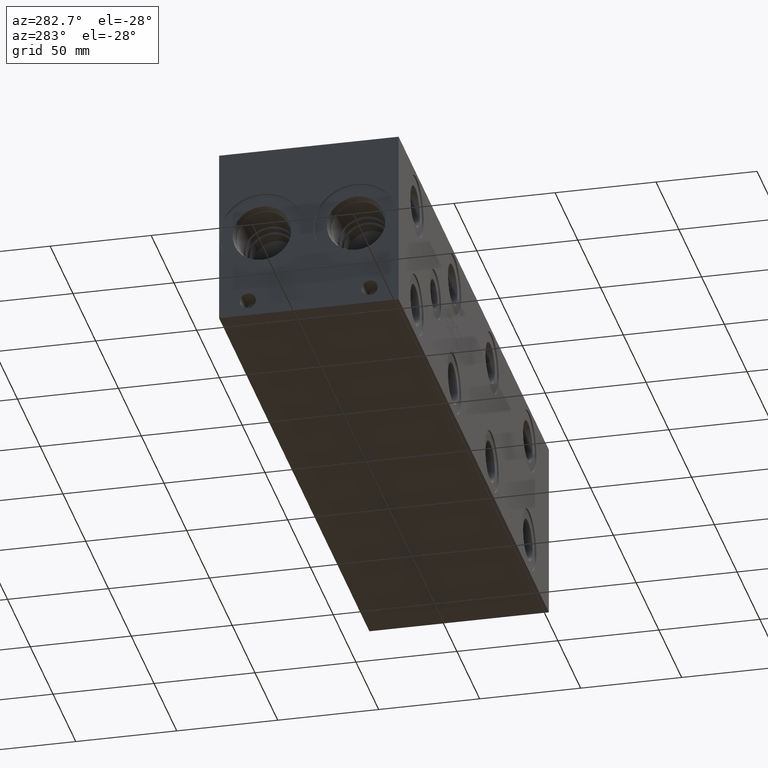
[diagram: clean part render]
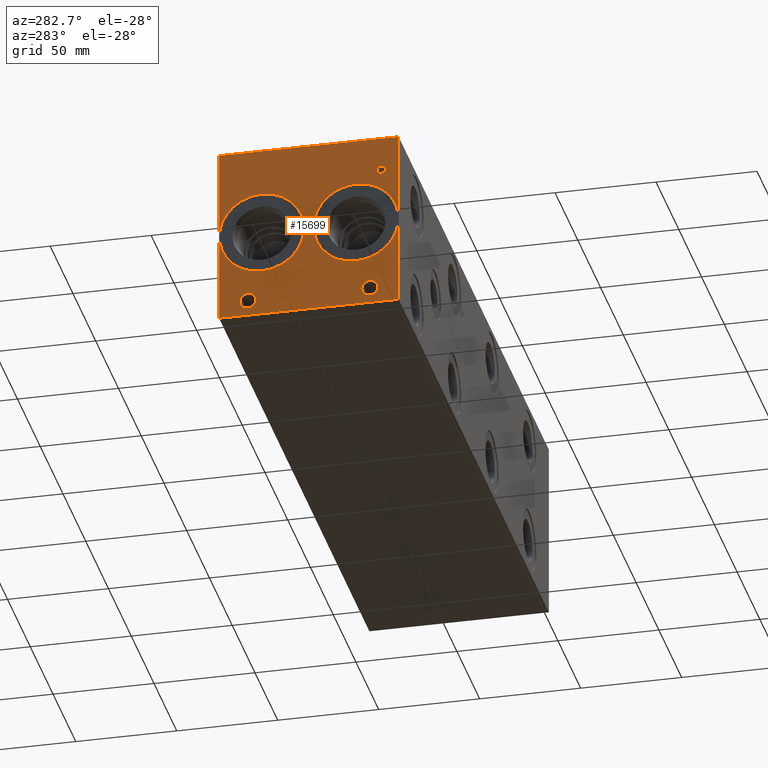
[diagram: same view with one face highlighted and labeled with its STEP entity id]
A machine part, auxiliary view. The second image highlights one B-rep face of the part: STEP entity #15699.
In plain terms, the highlighted planar face has unit normal (-1, 0, 0).
Its self-contained STEP definition (entity closure, byte-faithful):
#240=CIRCLE('',#16564,3.9624);
#241=CIRCLE('',#16565,3.9624);
#242=CIRCLE('',#16566,3.9624);
#243=CIRCLE('',#16567,3.9624);
#244=CIRCLE('',#16568,21.0185);
#245=CIRCLE('',#16569,21.0185);
#246=CIRCLE('',#16570,21.0185);
#247=CIRCLE('',#16571,21.0185);
#719=FACE_BOUND('',#2381,.T.);
#720=FACE_BOUND('',#2382,.T.);
#721=FACE_BOUND('',#2383,.T.);
#722=FACE_BOUND('',#2384,.T.);
#723=FACE_BOUND('',#2385,.T.);
#724=FACE_BOUND('',#2386,.T.);
#891=B_SPLINE_CURVE_WITH_KNOTS('',2,(#21784,#21785,#21786,#21787),
 .UNSPECIFIED.,.F.,.F.,(3,1,3),(0.,1.,2.),.UNSPECIFIED.);
#893=B_SPLINE_CURVE_WITH_KNOTS('',2,(#21805,#21806,#21807,#21808),
 .UNSPECIFIED.,.F.,.F.,(3,1,3),(0.,1.,2.),.UNSPECIFIED.);
#895=B_SPLINE_CURVE_WITH_KNOTS('',2,(#21854,#21855,#21856,#21857),
 .UNSPECIFIED.,.F.,.F.,(3,1,3),(0.,1.,2.),.UNSPECIFIED.);
#897=B_SPLINE_CURVE_WITH_KNOTS('',2,(#21872,#21873,#21874,#21875),
 .UNSPECIFIED.,.F.,.F.,(3,1,3),(0.,1.,2.),.UNSPECIFIED.);
#1514=FACE_OUTER_BOUND('',#2380,.T.);
#2380=EDGE_LOOP('',(#10324,#10325,#10326,#10327));
#2381=EDGE_LOOP('',(#10328,#10329,#10330,#10331,#10332,#10333,#10334,#10335));
#2382=EDGE_LOOP('',(#10336,#10337));
#2383=EDGE_LOOP('',(#10338,#10339));
#2384=EDGE_LOOP('',(#10340,#10341));
#2385=EDGE_LOOP('',(#10342,#10343));
#2386=EDGE_LOOP('',(#10344,#10345,#10346,#10347,#10348,#10349,#10350,#10351,
#10352));
#3393=LINE('',#21634,#4811);
#3397=LINE('',#21642,#4815);
#3400=LINE('',#21648,#4818);
#3403=LINE('',#21654,#4821);
#3406=LINE('',#21660,#4824);
#3409=LINE('',#21666,#4827);
#3412=LINE('',#21672,#4830);
#3415=LINE('',#21677,#4833);
#3433=LINE('',#21817,#4851);
#3436=LINE('',#21823,#4854);
#3439=LINE('',#21829,#4857);
#3442=LINE('',#21835,#4860);
#3445=LINE('',#21841,#4863);
#3449=LINE('',#21884,#4867);
#3450=LINE('',#21886,#4868);
#3451=LINE('',#21888,#4869);
#3452=LINE('',#21889,#4870);
#4811=VECTOR('',#17775,10.);
#4815=VECTOR('',#17781,10.);
#4818=VECTOR('',#17786,10.);
#4821=VECTOR('',#17791,10.);
#4824=VECTOR('',#17796,10.);
#4827=VECTOR('',#17801,10.);
#4830=VECTOR('',#17806,10.);
#4833=VECTOR('',#17811,10.);
#4851=VECTOR('',#17839,10.);
#4854=VECTOR('',#17844,10.);
#4857=VECTOR('',#17849,10.);
#4860=VECTOR('',#17854,10.);
#4863=VECTOR('',#17859,10.);
#4867=VECTOR('',#17867,10.);
#4868=VECTOR('',#17868,10.);
#4869=VECTOR('',#17869,10.);
#4870=VECTOR('',#17870,10.);
#6229=VERTEX_POINT('',#21632);
#6230=VERTEX_POINT('',#21633);
#6233=VERTEX_POINT('',#21641);
#6235=VERTEX_POINT('',#21647);
#6237=VERTEX_POINT('',#21653);
#6239=VERTEX_POINT('',#21659);
#6241=VERTEX_POINT('',#21665);
#6243=VERTEX_POINT('',#21671);
#6259=VERTEX_POINT('',#21782);
#6260=VERTEX_POINT('',#21783);
#6263=VERTEX_POINT('',#21804);
#6265=VERTEX_POINT('',#21816);
#6267=VERTEX_POINT('',#21822);
#6269=VERTEX_POINT('',#21828);
#6271=VERTEX_POINT('',#21834);
#6273=VERTEX_POINT('',#21840);
#6275=VERTEX_POINT('',#21853);
#6277=VERTEX_POINT('',#21882);
#6278=VERTEX_POINT('',#21883);
#6279=VERTEX_POINT('',#21885);
#6280=VERTEX_POINT('',#21887);
#6281=VERTEX_POINT('',#21890);
#6282=VERTEX_POINT('',#21891);
#6283=VERTEX_POINT('',#21894);
#6284=VERTEX_POINT('',#21895);
#6285=VERTEX_POINT('',#21898);
#6286=VERTEX_POINT('',#21899);
#6287=VERTEX_POINT('',#21902);
#6288=VERTEX_POINT('',#21903);
#7846=EDGE_CURVE('',#6229,#6230,#3393,.T.);
#7850=EDGE_CURVE('',#6233,#6229,#3397,.T.);
#7853=EDGE_CURVE('',#6235,#6233,#3400,.T.);
#7856=EDGE_CURVE('',#6237,#6235,#3403,.T.);
#7859=EDGE_CURVE('',#6239,#6237,#3406,.T.);
#7862=EDGE_CURVE('',#6241,#6239,#3409,.T.);
#7865=EDGE_CURVE('',#6243,#6241,#3412,.T.);
#7868=EDGE_CURVE('',#6230,#6243,#3415,.T.);
#7891=EDGE_CURVE('',#6259,#6260,#891,.T.);
#7895=EDGE_CURVE('',#6263,#6259,#893,.T.);
#7898=EDGE_CURVE('',#6265,#6263,#3433,.T.);
#7901=EDGE_CURVE('',#6267,#6265,#3436,.T.);
#7904=EDGE_CURVE('',#6269,#6267,#3439,.T.);
#7907=EDGE_CURVE('',#6271,#6269,#3442,.T.);
#7910=EDGE_CURVE('',#6273,#6271,#3445,.T.);
#7913=EDGE_CURVE('',#6275,#6273,#895,.T.);
#7916=EDGE_CURVE('',#6260,#6275,#897,.T.);
#7918=EDGE_CURVE('',#6277,#6278,#3449,.T.);
#7919=EDGE_CURVE('',#6278,#6279,#3450,.T.);
#7920=EDGE_CURVE('',#6280,#6279,#3451,.T.);
#7921=EDGE_CURVE('',#6277,#6280,#3452,.T.);
#7922=EDGE_CURVE('',#6281,#6282,#240,.T.);
#7923=EDGE_CURVE('',#6282,#6281,#241,.T.);
#7924=EDGE_CURVE('',#6283,#6284,#242,.T.);
#7925=EDGE_CURVE('',#6284,#6283,#243,.T.);
#7926=EDGE_CURVE('',#6285,#6286,#244,.T.);
#7927=EDGE_CURVE('',#6286,#6285,#245,.T.);
#7928=EDGE_CURVE('',#6287,#6288,#246,.T.);
#7929=EDGE_CURVE('',#6288,#6287,#247,.T.);
#10324=ORIENTED_EDGE('',*,*,#7918,.T.);
#10325=ORIENTED_EDGE('',*,*,#7919,.T.);
#10326=ORIENTED_EDGE('',*,*,#7920,.F.);
#10327=ORIENTED_EDGE('',*,*,#7921,.F.);
#10328=ORIENTED_EDGE('',*,*,#7846,.T.);
#10329=ORIENTED_EDGE('',*,*,#7868,.T.);
#10330=ORIENTED_EDGE('',*,*,#7865,.T.);
#10331=ORIENTED_EDGE('',*,*,#7862,.T.);
#10332=ORIENTED_EDGE('',*,*,#7859,.T.);
#10333=ORIENTED_EDGE('',*,*,#7856,.T.);
#10334=ORIENTED_EDGE('',*,*,#7853,.T.);
#10335=ORIENTED_EDGE('',*,*,#7850,.T.);
#10336=ORIENTED_EDGE('',*,*,#7922,.T.);
#10337=ORIENTED_EDGE('',*,*,#7923,.T.);
#10338=ORIENTED_EDGE('',*,*,#7924,.T.);
#10339=ORIENTED_EDGE('',*,*,#7925,.T.);
#10340=ORIENTED_EDGE('',*,*,#7926,.T.);
#10341=ORIENTED_EDGE('',*,*,#7927,.T.);
#10342=ORIENTED_EDGE('',*,*,#7928,.T.);
#10343=ORIENTED_EDGE('',*,*,#7929,.T.);
#10344=ORIENTED_EDGE('',*,*,#7891,.T.);
#10345=ORIENTED_EDGE('',*,*,#7916,.T.);
#10346=ORIENTED_EDGE('',*,*,#7913,.T.);
#10347=ORIENTED_EDGE('',*,*,#7910,.T.);
#10348=ORIENTED_EDGE('',*,*,#7907,.T.);
#10349=ORIENTED_EDGE('',*,*,#7904,.T.);
#10350=ORIENTED_EDGE('',*,*,#7901,.T.);
#10351=ORIENTED_EDGE('',*,*,#7898,.T.);
#10352=ORIENTED_EDGE('',*,*,#7895,.T.);
#14678=PLANE('',#16563);
#15699=ADVANCED_FACE('',(#1514,#719,#720,#721,#722,#723,#724),#14678,.T.);
#16563=AXIS2_PLACEMENT_3D('',#21881,#17865,#17866);
#16564=AXIS2_PLACEMENT_3D('',#21892,#17871,#17872);
#16565=AXIS2_PLACEMENT_3D('',#21893,#17873,#17874);
#16566=AXIS2_PLACEMENT_3D('',#21896,#17875,#17876);
#16567=AXIS2_PLACEMENT_3D('',#21897,#17877,#17878);
#16568=AXIS2_PLACEMENT_3D('',#21900,#17879,#17880);
#16569=AXIS2_PLACEMENT_3D('',#21901,#17881,#17882);
#16570=AXIS2_PLACEMENT_3D('',#21904,#17883,#17884);
#16571=AXIS2_PLACEMENT_3D('',#21905,#17885,#17886);
#17775=DIRECTION('',(0.,1.,1.0524411238433E-14));
#17781=DIRECTION('',(0.,3.17280044688052E-15,-1.));
#17786=DIRECTION('',(0.,1.,4.16909044227778E-15));
#17791=DIRECTION('',(0.,0.,-1.));
#17796=DIRECTION('',(0.,-1.,-3.47984565141734E-15));
#17801=DIRECTION('',(0.,0.,1.));
#17806=DIRECTION('',(0.,1.,0.));
#17811=DIRECTION('',(0.,-3.17280044688052E-15,1.));
#17839=DIRECTION('',(0.,-1.,-5.56775304226775E-15));
#17844=DIRECTION('',(0.,-3.14708893596576E-15,1.));
#17849=DIRECTION('',(0.,1.,0.));
#17854=DIRECTION('',(0.,2.81413604853751E-15,-1.));
#17859=DIRECTION('',(0.,1.,0.));
#17865=DIRECTION('center_axis',(-1.,0.,0.));
#17866=DIRECTION('ref_axis',(0.,-1.,0.));
#17867=DIRECTION('',(0.,-1.,0.));
#17868=DIRECTION('',(0.,0.,1.));
#17869=DIRECTION('',(0.,-1.,0.));
#17870=DIRECTION('',(0.,0.,1.));
#17871=DIRECTION('center_axis',(1.,0.,0.));
#17872=DIRECTION('ref_axis',(0.,1.,0.));
#17873=DIRECTION('center_axis',(1.,0.,0.));
#17874=DIRECTION('ref_axis',(0.,1.,0.));
#17875=DIRECTION('center_axis',(1.,0.,0.));
#17876=DIRECTION('ref_axis',(0.,1.,0.));
#17877=DIRECTION('center_axis',(1.,0.,0.));
#17878=DIRECTION('ref_axis',(0.,1.,0.));
#17879=DIRECTION('center_axis',(1.,0.,0.));
#17880=DIRECTION('ref_axis',(0.,0.,1.));
#17881=DIRECTION('center_axis',(1.,0.,0.));
#17882=DIRECTION('ref_axis',(0.,0.,1.));
#17883=DIRECTION('center_axis',(1.,0.,0.));
#17884=DIRECTION('ref_axis',(0.,0.,1.));
#17885=DIRECTION('center_axis',(1.,0.,0.));
#17886=DIRECTION('ref_axis',(0.,0.,1.));
#21632=CARTESIAN_POINT('',(0.,78.787084728547,67.46875));
#21633=CARTESIAN_POINT('',(0.,79.6310069200865,67.46875));
#21634=CARTESIAN_POINT('',(0.,83.8435423642731,67.46875));
#21641=CARTESIAN_POINT('',(0.,78.787084728547,73.0674533194815));
#21642=CARTESIAN_POINT('',(0.,78.7870847285471,36.5337266597407));
#21647=CARTESIAN_POINT('',(0.,76.6566957816119,73.0674533194815));
#21648=CARTESIAN_POINT('',(0.,82.7783478908058,73.0674533194815));
#21653=CARTESIAN_POINT('',(0.,76.6566957816119,73.8187499046325));
#21654=CARTESIAN_POINT('',(0.,76.6566957816119,36.9093749523163));
#21659=CARTESIAN_POINT('',(0.,81.7613958670216,73.8187499046326));
#21660=CARTESIAN_POINT('',(0.,85.3306979335107,73.8187499046326));
#21665=CARTESIAN_POINT('',(0.,81.7613958670216,73.0674533194815));
#21666=CARTESIAN_POINT('',(0.,81.7613958670216,36.5337266597408));
#21671=CARTESIAN_POINT('',(0.,79.6310069200865,73.0674533194815));
#21672=CARTESIAN_POINT('',(0.,84.2655034600432,73.0674533194815));
#21677=CARTESIAN_POINT('',(0.,79.6310069200866,33.734375));
#21782=CARTESIAN_POINT('',(0.,7.27543279764059,73.5177681439707));
#21783=CARTESIAN_POINT('',(0.,6.518990345468,71.9997373726039));
#21784=CARTESIAN_POINT('Ctrl Pts',(0.,7.27543279764059,73.5177681439707));
#21785=CARTESIAN_POINT('Ctrl Pts',(0.,6.92036797315142,73.2759123939563));
#21786=CARTESIAN_POINT('Ctrl Pts',(0.,6.518990345468,72.5297616758269));
#21787=CARTESIAN_POINT('Ctrl Pts',(0.,6.518990345468,71.9997373726039));
#21804=CARTESIAN_POINT('',(0.,8.93754784561168,73.9139999046325));
#21805=CARTESIAN_POINT('Ctrl Pts',(0.,8.93754784561168,73.9139999046325));
#21806=CARTESIAN_POINT('Ctrl Pts',(0.,8.37150247323763,73.9139999046325));
#21807=CARTESIAN_POINT('Ctrl Pts',(0.,7.57903895191395,73.7287486918556));
#21808=CARTESIAN_POINT('Ctrl Pts',(0.,7.27543279764059,73.5177681439707));
#21816=CARTESIAN_POINT('',(0.,10.5327666223022,73.9139999046326));
#21817=CARTESIAN_POINT('',(0.,49.7163833111509,73.9139999046328));
#21822=CARTESIAN_POINT('',(0.,10.5327666223022,67.564));
#21823=CARTESIAN_POINT('',(0.,10.5327666223023,33.7819999999999));
#21828=CARTESIAN_POINT('',(0.,9.68884443076272,67.564));
#21829=CARTESIAN_POINT('',(0.,49.2944222153814,67.564));
#21834=CARTESIAN_POINT('',(0.,9.68884443076271,69.9310988299278));
#21835=CARTESIAN_POINT('',(0.,9.68884443076281,34.9655494149638));
#21840=CARTESIAN_POINT('',(0.,8.97356891476277,69.9310988299278));
#21841=CARTESIAN_POINT('',(0.,48.9367844573814,69.9310988299278));
#21853=CARTESIAN_POINT('',(0.,7.0747439837989,70.5897698086904));
#21854=CARTESIAN_POINT('Ctrl Pts',(0.,7.0747439837989,70.5897698086904));
#21855=CARTESIAN_POINT('Ctrl Pts',(0.,7.40407947318016,70.2655801863307));
#21856=CARTESIAN_POINT('Ctrl Pts',(0.,8.29431446791391,69.9310988299278));
#21857=CARTESIAN_POINT('Ctrl Pts',(0.,8.97356891476277,69.9310988299278));
#21872=CARTESIAN_POINT('Ctrl Pts',(0.,6.518990345468,71.9997373726039));
#21873=CARTESIAN_POINT('Ctrl Pts',(0.,6.518990345468,71.5880680108773));
#21874=CARTESIAN_POINT('Ctrl Pts',(0.,6.8123047656982,70.8470631597695));
#21875=CARTESIAN_POINT('Ctrl Pts',(0.,7.0747439837989,70.5897698086904));
#21881=CARTESIAN_POINT('Origin',(0.,88.9,0.));
#21882=CARTESIAN_POINT('',(0.,88.9,0.));
#21883=CARTESIAN_POINT('',(0.,0.,0.));
#21884=CARTESIAN_POINT('',(0.,88.9,0.));
#21885=CARTESIAN_POINT('',(0.,0.,88.9));
#21886=CARTESIAN_POINT('',(0.,0.,0.));
#21887=CARTESIAN_POINT('',(0.,88.9,88.9));
#21888=CARTESIAN_POINT('',(0.,88.9,88.9));
#21889=CARTESIAN_POINT('',(0.,88.9,0.));
#21890=CARTESIAN_POINT('',(0.,18.2372,7.92479999999999));
#21891=CARTESIAN_POINT('',(0.,10.3124,7.92479999999999));
#21892=CARTESIAN_POINT('Origin',(0.,14.2748,7.92479999999999));
#21893=CARTESIAN_POINT('Origin',(0.,14.2748,7.92479999999999));
#21894=CARTESIAN_POINT('',(0.,78.5876,7.92479999999999));
#21895=CARTESIAN_POINT('',(0.,70.6628,7.92479999999999));
#21896=CARTESIAN_POINT('Origin',(0.,74.6252,7.92479999999999));
#21897=CARTESIAN_POINT('Origin',(0.,74.6252,7.92479999999999));
#21898=CARTESIAN_POINT('',(0.,21.082,65.4685));
#21899=CARTESIAN_POINT('',(0.,21.082,23.4315));
#21900=CARTESIAN_POINT('Origin',(0.,21.082,44.45));
#21901=CARTESIAN_POINT('Origin',(0.,21.082,44.45));
#21902=CARTESIAN_POINT('',(0.,67.818,65.4685));
#21903=CARTESIAN_POINT('',(0.,67.818,23.4315));
#21904=CARTESIAN_POINT('Origin',(0.,67.818,44.45));
#21905=CARTESIAN_POINT('Origin',(0.,67.818,44.45));